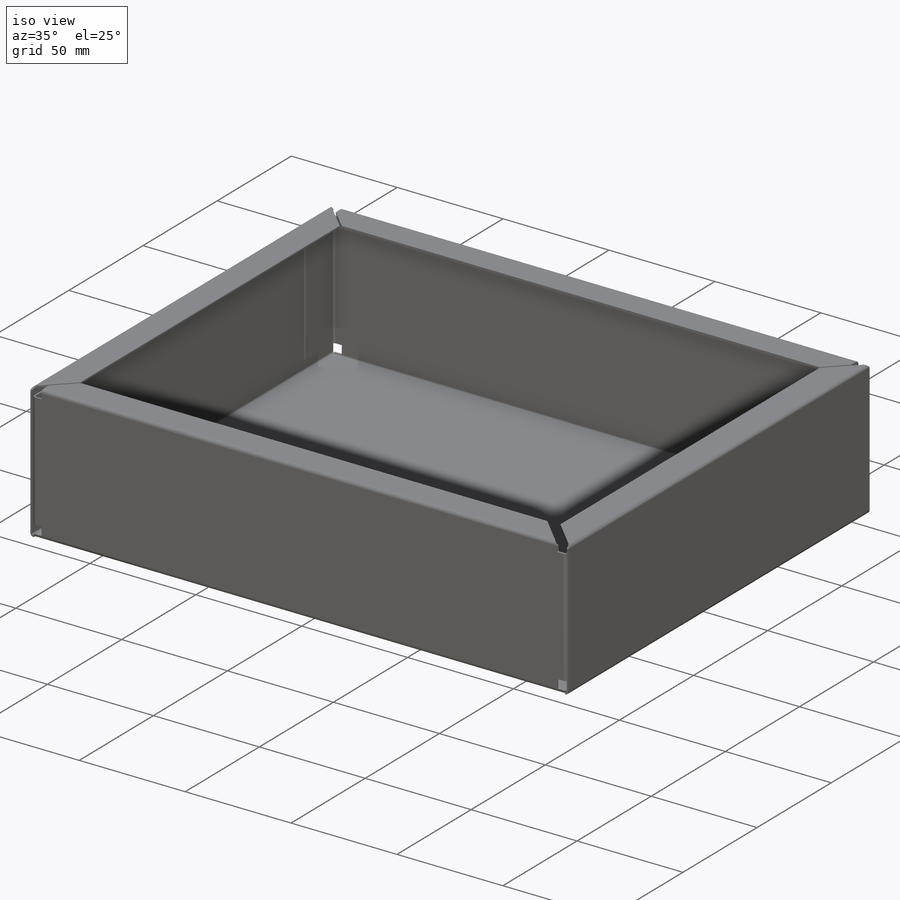
[diagram: iso view]
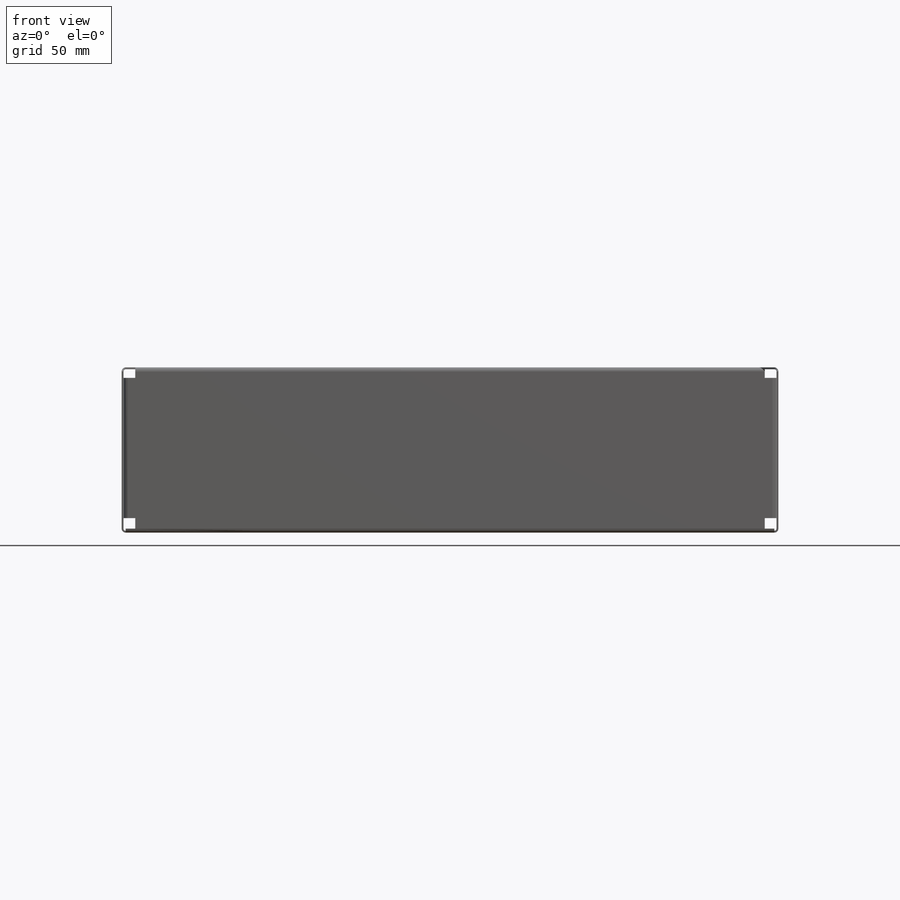
[diagram: front view]
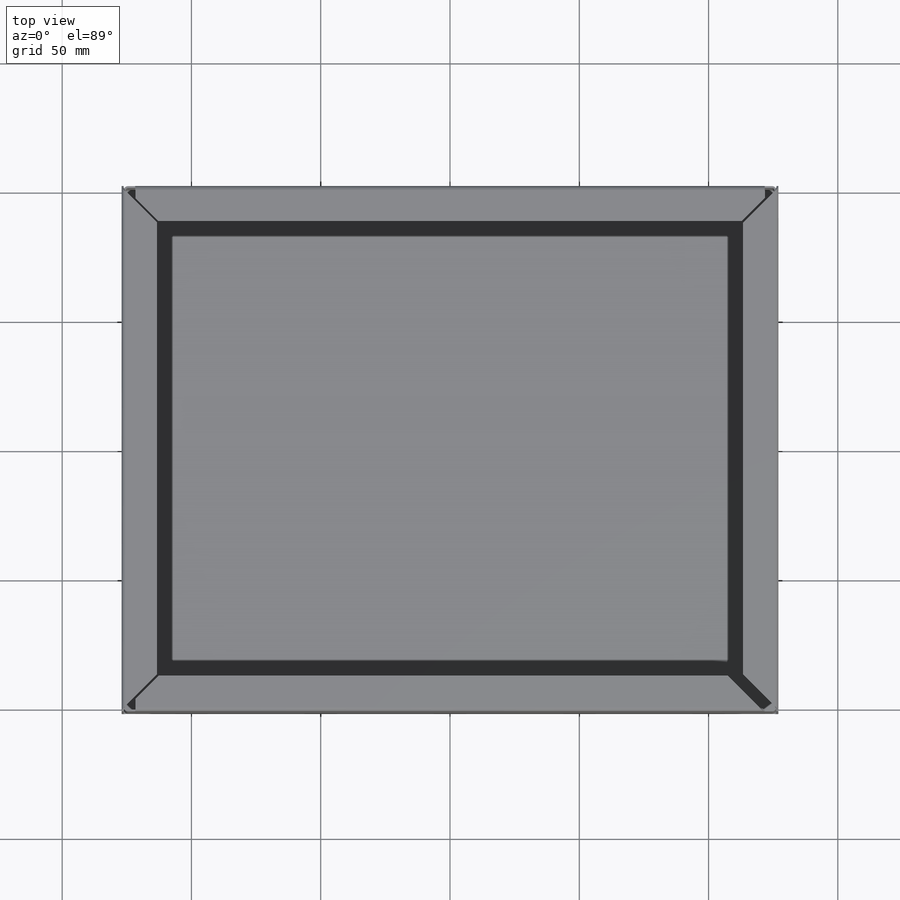
[diagram: top view]
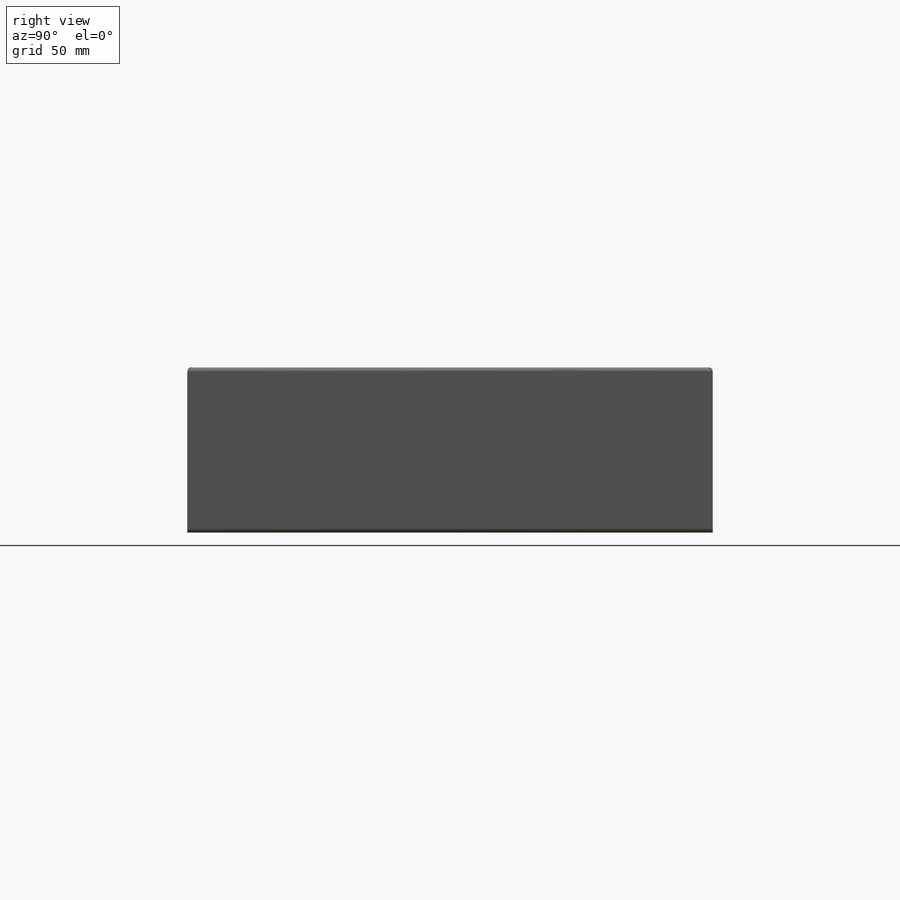
[diagram: right view]
SOLIDWORKS PART (.sldprt)
format: sldprt  version: not decoded by parser v0  size: 556,032 bytes
history: native  units: mm
features: sketch x13, sheet_metal_op x8, cut_extrude x2, mirror x2, material x1 + 17 further entries (+13 scaffold rows collapsed; 2 parser-record rows omitted)
feature tree (58):
  scaffold x13  (default folders/planes/origin — collapsed)
  material  "Material <not specified>"
  sketch  "Sketch1"  dims[c1.D1=254.0mm c1.D2=203.2mm c2.D1=~329.225592mm c2.D2=~420.069637mm c3.D1=246.5mm]
  sheet_metal_op  "Sheet-Metal1"
  sheet_metal_op  "Base-Flange1"
  sketch  "Sketch6"  dims[D1=~40.426248mm]
  sketch  "Sketch4"  dims[D1=254.0mm]
  parser-record x2  (decoder bookkeeping rows leaked as tree rows — omitted from the tree; the rows remain in map.json)
  "SketchBend25"
  sketch  "Sketch9"
  sheet_metal_op  "EdgeBend1"
  sketch  "Sketch11"  dims[c1.D1=~62.379514mm c1.D2=~3.192501mm c2.D1=~14.508984mm c3.D1=135.0deg c4.D1=3.75mm]
  cut_extrude  "Cut-Extrude2"  [1 undecoded]
  sketch  "Sketch31"  dims[D1=~8.928687mm D2=~6.448813mm]
  cut_extrude  "Cut-Extrude5"  [1 undecoded]
  sketch  "Sketch16"
  sheet_metal_op  "EdgeBend2"
  mirror  "Mirror2"
  "MirrorBend2"
  mirror  "Mirror3"
  "MirrorBend3"
  "MirrorBend4"
  "MirrorBend5"
  sketch  "Sketch27"
  sketch  "Sketch28"
  sketch  "Sketch29"
  sketch  "Sketch30"
  sheet_metal_op  "EdgeBend3"
  sheet_metal_op  "EdgeBend4"
  sheet_metal_op  "EdgeBend5"
  sheet_metal_op  "EdgeBend6"
  "Flat-Pattern1"
  sketch  "Bend-Lines1"
  sketch  "Bounding-Box1"
  "Flatten-<SketchBend25>1"
  "Flatten-<EdgeBend1>1"
  "Flatten-<EdgeBend2>1"
  "Flatten-<MirrorBend2>1"
  "Flatten-<MirrorBend3>1"
  "Flatten-<MirrorBend4>1"
  "Flatten-<MirrorBend5>1"
  "Flatten-<EdgeBend3>1"
  "Flatten-<EdgeBend4>1"
  "Flatten-<EdgeBend5>1"
  "Flatten-<EdgeBend6>1"
decode coverage: 5 of 25 modeling features carry decoded parameters; 17 rows unclassified (native names shown)
note: ~ marks probable driven/reference dimensions
note: 2 parameter values undecoded
note: suppression state not decoded; provenance and decode notes live in map.json
